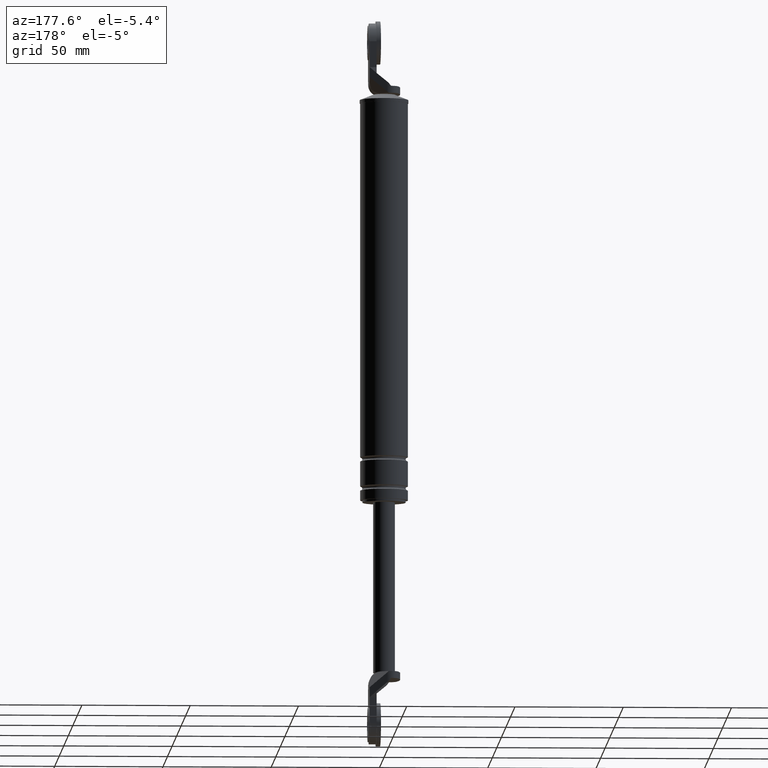
[diagram: clean part render]
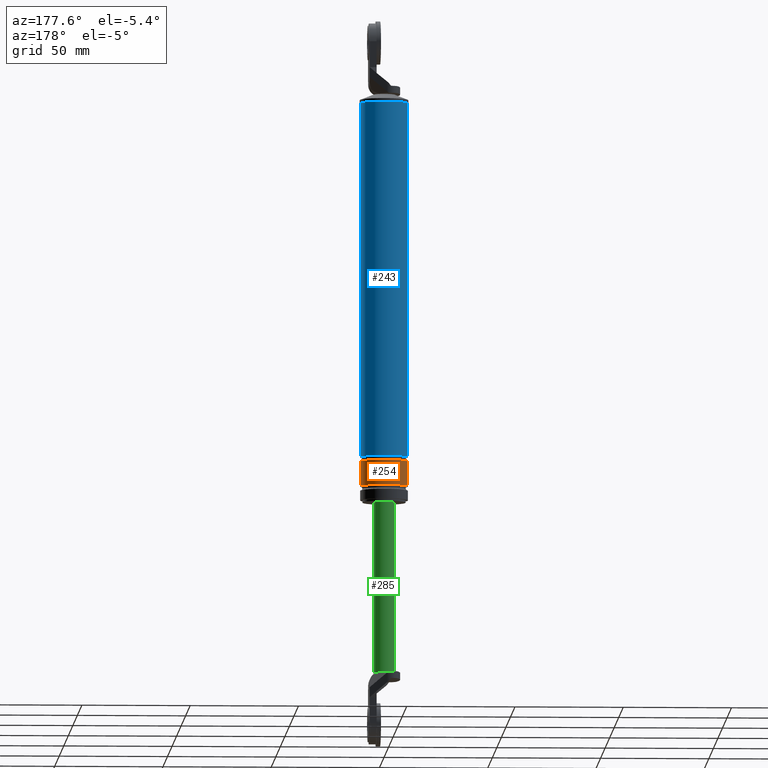
[diagram: same view with three faces highlighted in distinct colors, each labeled with its STEP entity id]
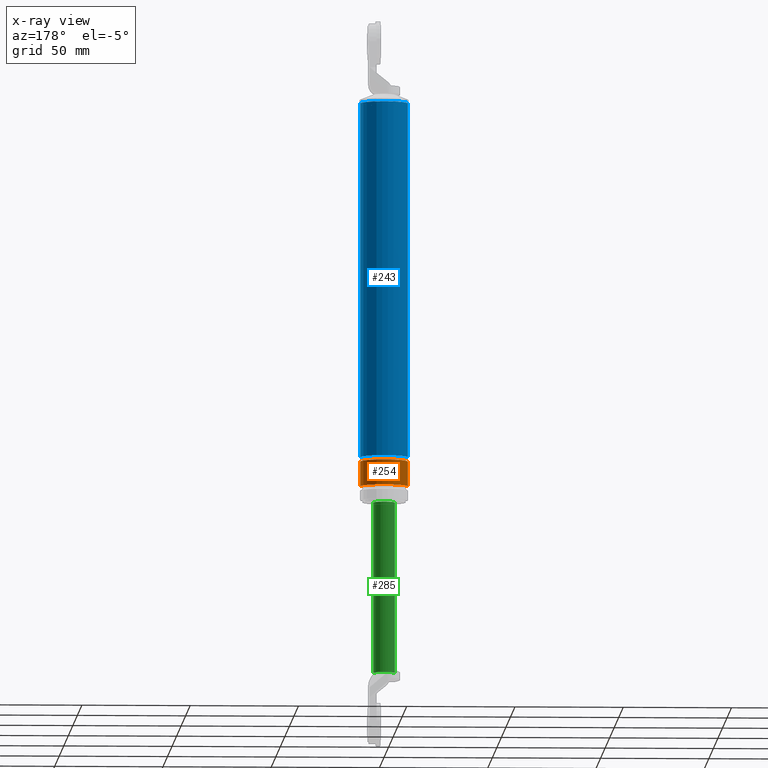
[diagram: x-ray of the same camera — body ghosted, the three highlighted faces saturated]
A machine part, auxiliary view with three faces highlighted in distinct colors.
The next image is the same camera in x-ray (body ghosted, the three faces saturated) — at least one of them is partly hidden behind the body in this view.
Their STEP definitions:

[orange] entity #254 — the highlighted cylindrical surface (edge-blend (fillet) strip) has radius 11 mm, axis along (0, 0, 1).
#254=ADVANCED_FACE('',(#795),#794,.T.);
#794=CYLINDRICAL_SURFACE('',#1541,1.10000000000E+001);
#795=FACE_OUTER_BOUND('',#1542,.T.);
#1538=CARTESIAN_POINT('',(0.00000000000E+000,3.58204186421E-014,0.00000000000E+000));
#1539=DIRECTION('',(-0.00000000000E+000,-0.00000000000E+000,1.00000000000E+000));
#1540=DIRECTION('',(-1.00000000000E+000,1.22464679915E-016,0.00000000000E+000));
#1541=AXIS2_PLACEMENT_3D('',#1538,#1539,#1540);
#1542=EDGE_LOOP('',(#1994,#1995,#1996,#1997));
#1994=ORIENTED_EDGE('',*,*,#2271,.F.);
#1995=ORIENTED_EDGE('',*,*,#2279,.T.);
#1996=ORIENTED_EDGE('',*,*,#2276,.T.);
#1997=ORIENTED_EDGE('',*,*,#2280,.F.);
#2271=EDGE_CURVE('',#3110,#3111,#3112,.T.);
#2276=EDGE_CURVE('',#3143,#3136,#3144,.T.);
#2279=EDGE_CURVE('',#3110,#3143,#3162,.T.);
#2280=EDGE_CURVE('',#3111,#3136,#3168,.T.);
#3110=VERTEX_POINT('',#4135);
#3111=VERTEX_POINT('',#4136);
#3112=CIRCLE('',#4140,1.10000000000E+001);
#3136=VERTEX_POINT('',#4155);
#3143=VERTEX_POINT('',#4161);
#3144=CIRCLE('',#4165,1.10000000000E+001);
#3162=(BOUNDED_CURVE() B_SPLINE_CURVE(1,(#4175,#4176),.UNSPECIFIED.,.F.,.F.) B_SPLINE_CURVE_WITH_KNOTS((2,2),(8.33333343261E-002,9.16666667006E-001),.UNSPECIFIED.) CURVE() GEOMETRIC_REPRESENTATION_ITEM() RATIONAL_B_SPLINE_CURVE((1.00000000000E+000,1.00000000000E+000)) REPRESENTATION_ITEM('') );
#3168=(BOUNDED_CURVE() B_SPLINE_CURVE(1,(#4177,#4178),.UNSPECIFIED.,.F.,.F.) B_SPLINE_CURVE_WITH_KNOTS((2,2),(8.33333333333E-002,9.16666666667E-001),.UNSPECIFIED.) CURVE() GEOMETRIC_REPRESENTATION_ITEM() RATIONAL_B_SPLINE_CURVE((7.50000000000E-001,7.50000000000E-001)) REPRESENTATION_ITEM('') );
#4135=CARTESIAN_POINT('',(-1.10000000000E+001,3.58204186421E-014,-9.25000150000E+001));
#4136=CARTESIAN_POINT('',(1.10000000000E+001,3.61192557345E-014,-9.25000150000E+001));
#4137=CARTESIAN_POINT('',(0.00000000000E+000,3.58204186421E-014,-9.25000150000E+001));
#4138=DIRECTION('',(-0.00000000000E+000,0.00000000000E+000,-1.00000000000E+000));
#4139=DIRECTION('',(-1.00000000000E+000,-1.22460635382E-016,0.00000000000E+000));
#4140=AXIS2_PLACEMENT_3D('',#4137,#4138,#4139);
#4155=CARTESIAN_POINT('',(1.10000000000E+001,3.61192557345E-014,-8.10000150000E+001));
#4161=CARTESIAN_POINT('',(-1.10000000000E+001,3.58204186421E-014,-8.10000150000E+001));
#4162=CARTESIAN_POINT('',(0.00000000000E+000,3.58204186421E-014,-8.10000150000E+001));
#4163=DIRECTION('',(-0.00000000000E+000,0.00000000000E+000,-1.00000000000E+000));
#4164=DIRECTION('',(-1.00000000000E+000,-1.22460635382E-016,0.00000000000E+000));
#4165=AXIS2_PLACEMENT_3D('',#4162,#4163,#4164);
#4175=CARTESIAN_POINT('',(-1.10000000000E+001,3.71675301212E-014,-9.25000149863E+001));
#4176=CARTESIAN_POINT('',(-1.10000000000E+001,3.71675301212E-014,-8.10000149953E+001));
#4177=CARTESIAN_POINT('',(1.10000000000E+001,3.49350178415E-014,-9.25000150000E+001));
#4178=CARTESIAN_POINT('',(1.10000000000E+001,3.49350178415E-014,-8.10000150000E+001));

[blue] entity #243 — the highlighted cylindrical surface (edge-blend (fillet) strip) has radius 11 mm, axis along (0, 0, 1).
#243=ADVANCED_FACE('',(#685),#684,.T.);
#684=CYLINDRICAL_SURFACE('',#1402,1.10000000000E+001);
#685=FACE_OUTER_BOUND('',#1403,.T.);
#1399=CARTESIAN_POINT('',(0.00000000000E+000,3.58204186421E-014,0.00000000000E+000));
#1400=DIRECTION('',(-0.00000000000E+000,-0.00000000000E+000,1.00000000000E+000));
#1401=DIRECTION('',(1.00000000000E+000,-0.00000000000E+000,-0.00000000000E+000));
#1402=AXIS2_PLACEMENT_3D('',#1399,#1400,#1401);
#1403=EDGE_LOOP('',(#1950,#1951,#1952,#1953));
#1950=ORIENTED_EDGE('',*,*,#2215,.T.);
#1951=ORIENTED_EDGE('',*,*,#2261,.F.);
#1952=ORIENTED_EDGE('',*,*,#2262,.F.);
#1953=ORIENTED_EDGE('',*,*,#2263,.T.);
#2215=EDGE_CURVE('',#2737,#2736,#2744,.T.);
#2261=EDGE_CURVE('',#3046,#2736,#3047,.T.);
#2262=EDGE_CURVE('',#3053,#3046,#3054,.T.);
#2263=EDGE_CURVE('',#3053,#2737,#3060,.T.);
#2736=VERTEX_POINT('',#3916);
#2737=VERTEX_POINT('',#3917);
#2744=CIRCLE('',#3925,1.10000000000E+001);
#3046=VERTEX_POINT('',#4103);
#3047=(BOUNDED_CURVE() B_SPLINE_CURVE(1,(#4104,#4105),.UNSPECIFIED.,.F.,.F.) B_SPLINE_CURVE_WITH_KNOTS((2,2),(5.43478259816E-002,9.45652173933E-001),.UNSPECIFIED.) CURVE() GEOMETRIC_REPRESENTATION_ITEM() RATIONAL_B_SPLINE_CURVE((1.00000000000E+000,1.00000000000E+000)) REPRESENTATION_ITEM('') );
#3053=VERTEX_POINT('',#4106);
#3054=CIRCLE('',#4110,1.10000000000E+001);
#3060=(BOUNDED_CURVE() B_SPLINE_CURVE(1,(#4111,#4112),.UNSPECIFIED.,.F.,.F.) B_SPLINE_CURVE_WITH_KNOTS((2,2),(5.43478260870E-002,9.45652173913E-001),.UNSPECIFIED.) CURVE() GEOMETRIC_REPRESENTATION_ITEM() RATIONAL_B_SPLINE_CURVE((7.50000000000E-001,7.50000000000E-001)) REPRESENTATION_ITEM('') );
#3916=CARTESIAN_POINT('',(1.10000000000E+001,3.61192557345E-014,8.49999850000E+001));
#3917=CARTESIAN_POINT('',(-1.10000000000E+001,3.58204186421E-014,8.49999850000E+001));
#3922=CARTESIAN_POINT('',(0.00000000000E+000,3.58204186421E-014,8.49999850000E+001));
#3923=DIRECTION('',(-0.00000000000E+000,0.00000000000E+000,-1.00000000000E+000));
#3924=DIRECTION('',(-1.00000000000E+000,-1.22460635382E-016,0.00000000000E+000));
#3925=AXIS2_PLACEMENT_3D('',#3922,#3923,#3924);
#4103=CARTESIAN_POINT('',(1.10000000000E+001,3.61192557345E-014,-7.90000150000E+001));
#4104=CARTESIAN_POINT('',(1.10000000000E+001,3.58204186421E-014,-7.90000150194E+001));
#4105=CARTESIAN_POINT('',(1.10000000000E+001,3.58204186421E-014,8.49999850038E+001));
#4106=CARTESIAN_POINT('',(-1.10000000000E+001,3.58204186421E-014,-7.90000150000E+001));
#4107=CARTESIAN_POINT('',(0.00000000000E+000,3.58204186421E-014,-7.90000150000E+001));
#4108=DIRECTION('',(-0.00000000000E+000,0.00000000000E+000,-1.00000000000E+000));
#4109=DIRECTION('',(-1.00000000000E+000,-1.22460635382E-016,0.00000000000E+000));
#4110=AXIS2_PLACEMENT_3D('',#4107,#4108,#4109);
#4111=CARTESIAN_POINT('',(-1.10000000000E+001,3.55271367880E-014,-7.90000150000E+001));
#4112=CARTESIAN_POINT('',(-1.10000000000E+001,3.55271367880E-014,8.49999850000E+001));

[green] entity #285 — the highlighted cylindrical surface (edge-blend (fillet) strip) has radius 5 mm, axis along (0, 0, 1).
#285=ADVANCED_FACE('',(#1107),#1106,.T.);
#1106=CYLINDRICAL_SURFACE('',#1760,5.00000000000E+000);
#1107=FACE_OUTER_BOUND('',#1761,.T.);
#1757=CARTESIAN_POINT('',(0.00000000000E+000,3.58204186421E-014,0.00000000000E+000));
#1758=DIRECTION('',(-0.00000000000E+000,-0.00000000000E+000,1.00000000000E+000));
#1759=DIRECTION('',(-1.00000000000E+000,1.22464679915E-016,0.00000000000E+000));
#1760=AXIS2_PLACEMENT_3D('',#1757,#1758,#1759);
#1761=EDGE_LOOP('',(#2153,#2154,#2155,#2156,#2157));
#2153=ORIENTED_EDGE('',*,*,#2340,.F.);
#2154=ORIENTED_EDGE('',*,*,#2351,.F.);
#2155=ORIENTED_EDGE('',*,*,#2354,.T.);
#2156=ORIENTED_EDGE('',*,*,#2337,.F.);
#2157=ORIENTED_EDGE('',*,*,#2355,.F.);
#2337=EDGE_CURVE('',#3549,#3550,#3551,.T.);
#2340=EDGE_CURVE('',#3309,#3570,#3571,.T.);
#2351=EDGE_CURVE('',#3633,#3309,#3640,.T.);
#2354=EDGE_CURVE('',#3633,#3550,#3658,.T.);
#2355=EDGE_CURVE('',#3570,#3549,#3664,.T.);
#3309=VERTEX_POINT('',#4259);
#3549=VERTEX_POINT('',#4397);
#3550=VERTEX_POINT('',#4398);
#3551=CIRCLE('',#4402,5.00000000000E+000);
#3570=VERTEX_POINT('',#4411);
#3571=CIRCLE('',#4415,5.00000000000E+000);
#3633=VERTEX_POINT('',#4449);
#3640=CIRCLE('',#4457,5.00000000000E+000);
#3658=(BOUNDED_CURVE() B_SPLINE_CURVE(1,(#4462,#4463),.UNSPECIFIED.,.F.,.F.) B_SPLINE_CURVE_WITH_KNOTS((2,2),(8.33333332085E-002,9.16666666563E-001),.UNSPECIFIED.) CURVE() GEOMETRIC_REPRESENTATION_ITEM() RATIONAL_B_SPLINE_CURVE((1.00000000000E+000,1.00000000000E+000)) REPRESENTATION_ITEM('') );
#3664=(BOUNDED_CURVE() B_SPLINE_CURVE(1,(#4464,#4465),.UNSPECIFIED.,.F.,.F.) B_SPLINE_CURVE_WITH_KNOTS((2,2),(8.33333333333E-002,9.16666666667E-001),.UNSPECIFIED.) CURVE() GEOMETRIC_REPRESENTATION_ITEM() RATIONAL_B_SPLINE_CURVE((7.50000000000E-001,7.50000000000E-001)) REPRESENTATION_ITEM('') );
#4259=CARTESIAN_POINT('',(2.00000000000E+000,4.58257569496E+000,-1.79000015000E+002));
#4397=CARTESIAN_POINT('',(5.00000000000E+000,3.58204186421E-014,-1.00000015000E+002));
#4398=CARTESIAN_POINT('',(-5.00000000000E+000,3.58231962612E-014,-1.00000015000E+002));
#4399=CARTESIAN_POINT('',(0.00000000000E+000,3.58204186421E-014,-1.00000015000E+002));
#4400=DIRECTION('',(0.00000000000E+000,0.00000000000E+000,1.00000000000E+000));
#4401=DIRECTION('',(1.00000000000E+000,-1.22460635382E-016,0.00000000000E+000));
#4402=AXIS2_PLACEMENT_3D('',#4399,#4400,#4401);
#4411=CARTESIAN_POINT('',(5.00000000000E+000,2.22686622211E-006,-1.79000015000E+002));
#4412=CARTESIAN_POINT('',(0.00000000000E+000,3.58204186421E-014,-1.79000015000E+002));
#4413=DIRECTION('',(0.00000000000E+000,0.00000000000E+000,-1.00000000000E+000));
#4414=DIRECTION('',(4.00000000000E-001,9.16515138991E-001,0.00000000000E+000));
#4415=AXIS2_PLACEMENT_3D('',#4412,#4413,#4414);
#4449=CARTESIAN_POINT('',(-5.00000000000E+000,-1.92829149747E-008,-1.79000015000E+002));
#4454=CARTESIAN_POINT('',(0.00000000000E+000,3.58204186421E-014,-1.79000015000E+002));
#4455=DIRECTION('',(0.00000000000E+000,0.00000000000E+000,-1.00000000000E+000));
#4456=DIRECTION('',(1.00000000000E+000,-0.00000000000E+000,-0.00000000000E+000));
#4457=AXIS2_PLACEMENT_3D('',#4454,#4455,#4456);
#4462=CARTESIAN_POINT('',(-5.00000000000E+000,3.64327420417E-014,-1.79000015012E+002));
#4463=CARTESIAN_POINT('',(-5.00000000000E+000,3.64327420417E-014,-1.00000015010E+002));
#4464=CARTESIAN_POINT('',(5.00000000000E+000,3.55271367880E-014,-1.79000015000E+002));
#4465=CARTESIAN_POINT('',(5.00000000000E+000,3.55271367880E-014,-1.00000015000E+002));